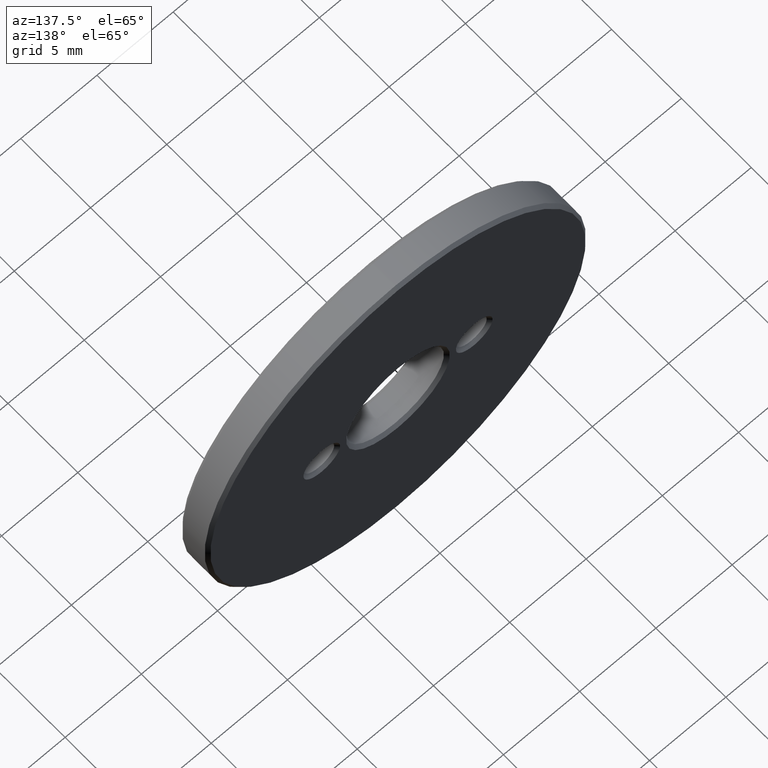
[diagram: clean part render]
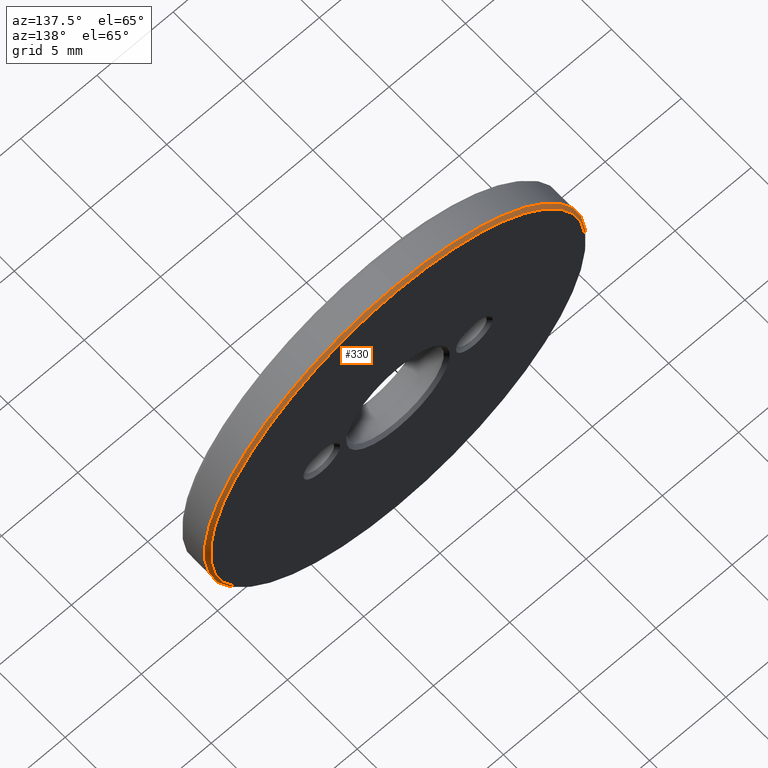
[diagram: same view with one face highlighted and labeled with its STEP entity id]
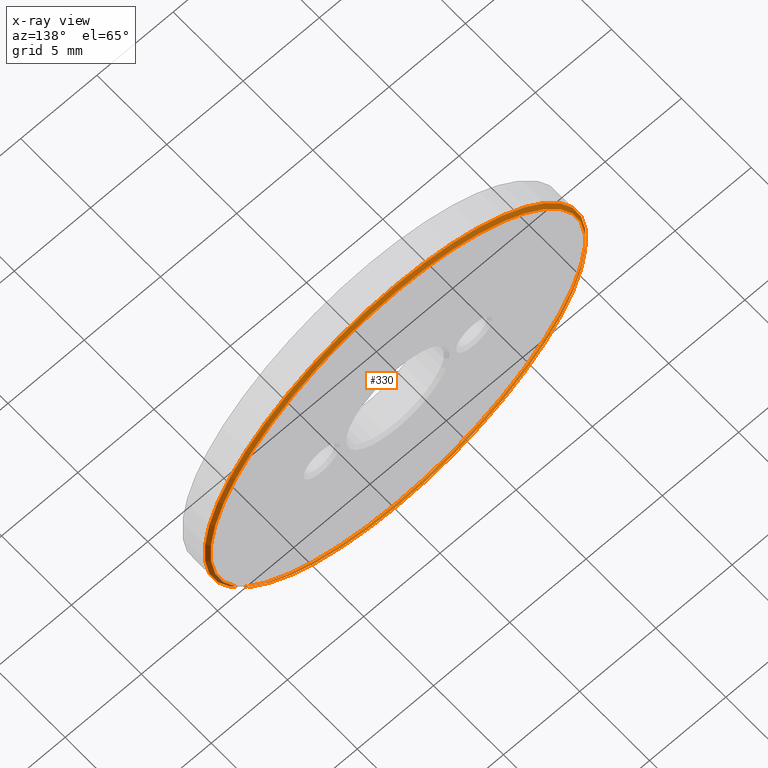
[diagram: x-ray of the same camera — body ghosted, the highlighted face saturated]
A machine part, auxiliary view. The second image highlights one B-rep face of the part: STEP entity #330.
The next image is the same camera in x-ray: the body ghosted, the highlighted face saturated — about 0% of this face is hidden behind the body in this view.
In plain terms, the highlighted conical surface has half-angle 45 deg.
Its self-contained STEP definition (entity closure, byte-faithful):
#21 = ORIENTED_EDGE ( 'NONE', *, *, #59, .F. ) ;
#59 = EDGE_CURVE ( 'NONE', #211, #211, #259, .T. ) ;
#69 = FACE_OUTER_BOUND ( 'NONE', #162, .T. ) ;
#70 = CARTESIAN_POINT ( 'NONE',  ( 0.000000000000000000, 2.000000000000000000, 0.000000000000000000 ) ) ;
#82 = AXIS2_PLACEMENT_3D ( 'NONE', #324, #172, #394 ) ;
#117 = DIRECTION ( 'NONE',  ( 0.000000000000000000, -1.000000000000000000, 0.000000000000000000 ) ) ;
#136 = DIRECTION ( 'NONE',  ( 0.000000000000000000, -1.000000000000000000, 0.000000000000000000 ) ) ;
#138 = DIRECTION ( 'NONE',  ( 0.000000000000000000, 0.000000000000000000, -1.000000000000000000 ) ) ;
#143 = ORIENTED_EDGE ( 'NONE', *, *, #209, .F. ) ;
#152 = DIRECTION ( 'NONE',  ( 0.000000000000000000, 0.000000000000000000, 1.000000000000000000 ) ) ;
#162 = EDGE_LOOP ( 'NONE', ( #143 ) ) ;
#170 = FACE_BOUND ( 'NONE', #269, .T. ) ;
#172 = DIRECTION ( 'NONE',  ( 0.000000000000000000, 1.000000000000000000, 0.000000000000000000 ) ) ;
#201 = AXIS2_PLACEMENT_3D ( 'NONE', #327, #117, #152 ) ;
#209 = EDGE_CURVE ( 'NONE', #332, #332, #380, .T. ) ;
#211 = VERTEX_POINT ( 'NONE', #243 ) ;
#243 = CARTESIAN_POINT ( 'NONE',  ( 0.000000000000000000, 2.000000000000000000, 12.29999999999999893 ) ) ;
#259 = CIRCLE ( 'NONE', #82, 12.29999999999999893 ) ;
#269 = EDGE_LOOP ( 'NONE', ( #21 ) ) ;
#287 = CONICAL_SURFACE ( 'NONE', #362, 12.29999999999999893, 0.7853981633974612686 ) ;
#324 = CARTESIAN_POINT ( 'NONE',  ( 0.000000000000000000, 2.000000000000000000, 0.000000000000000000 ) ) ;
#327 = CARTESIAN_POINT ( 'NONE',  ( 0.000000000000000000, 1.800000000000002931, 0.000000000000000000 ) ) ;
#328 = CARTESIAN_POINT ( 'NONE',  ( 0.000000000000000000, 1.800000000000002931, 12.50000000000000000 ) ) ;
#330 = ADVANCED_FACE ( 'NONE', ( #69, #170 ), #287, .T. ) ;
#332 = VERTEX_POINT ( 'NONE', #328 ) ;
#362 = AXIS2_PLACEMENT_3D ( 'NONE', #70, #136, #138 ) ;
#380 = CIRCLE ( 'NONE', #201, 12.50000000000000000 ) ;
#394 = DIRECTION ( 'NONE',  ( 0.000000000000000000, 0.000000000000000000, 1.000000000000000000 ) ) ;